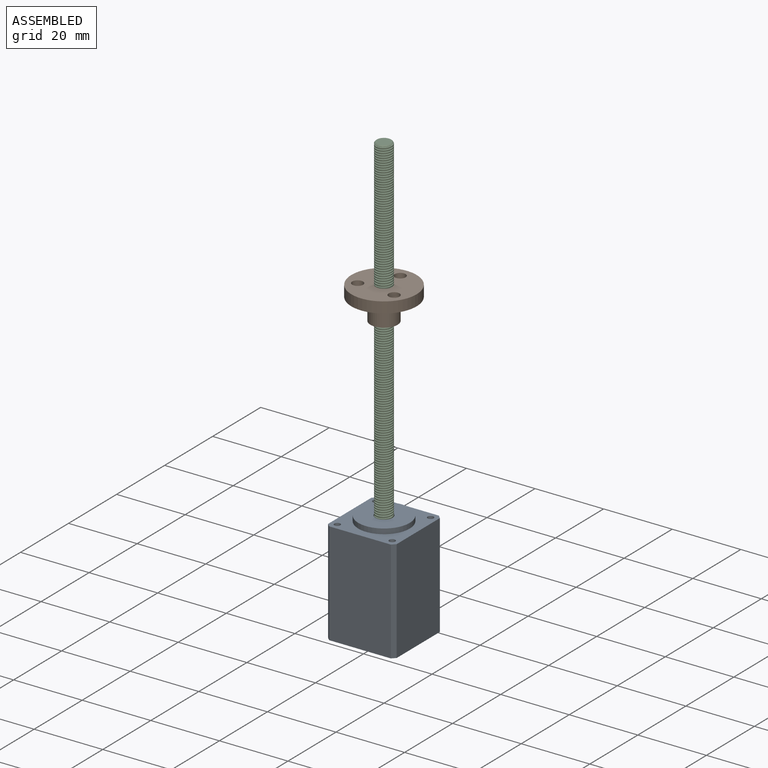
[diagram: assembled view]
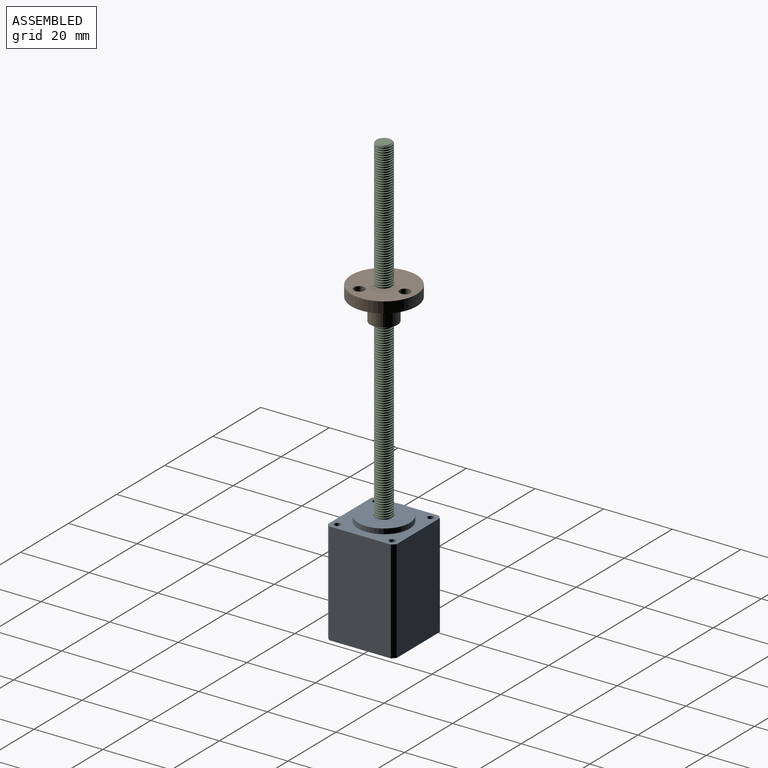
[diagram: assembled view, second angle]
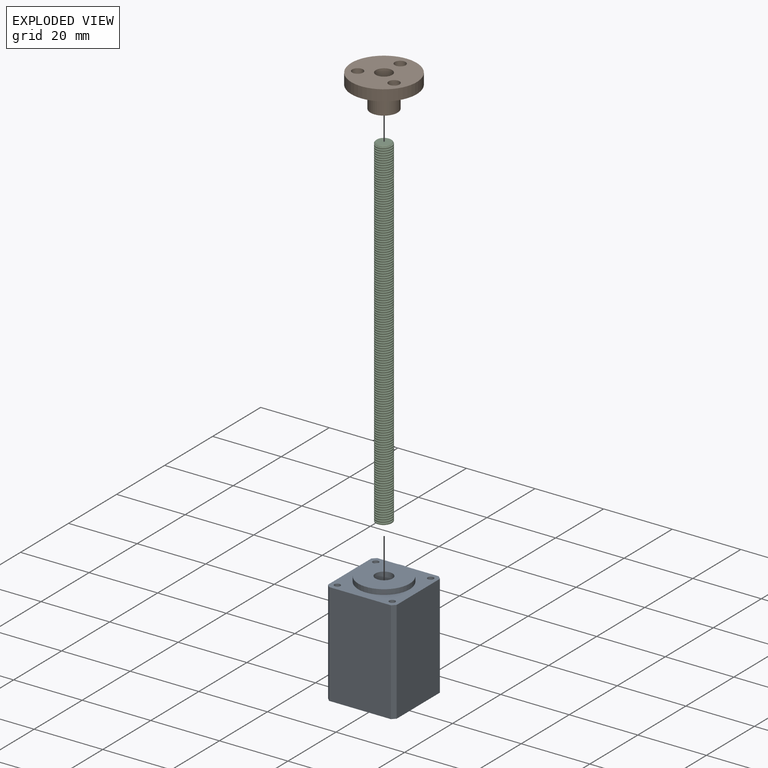
[diagram: exploded view]
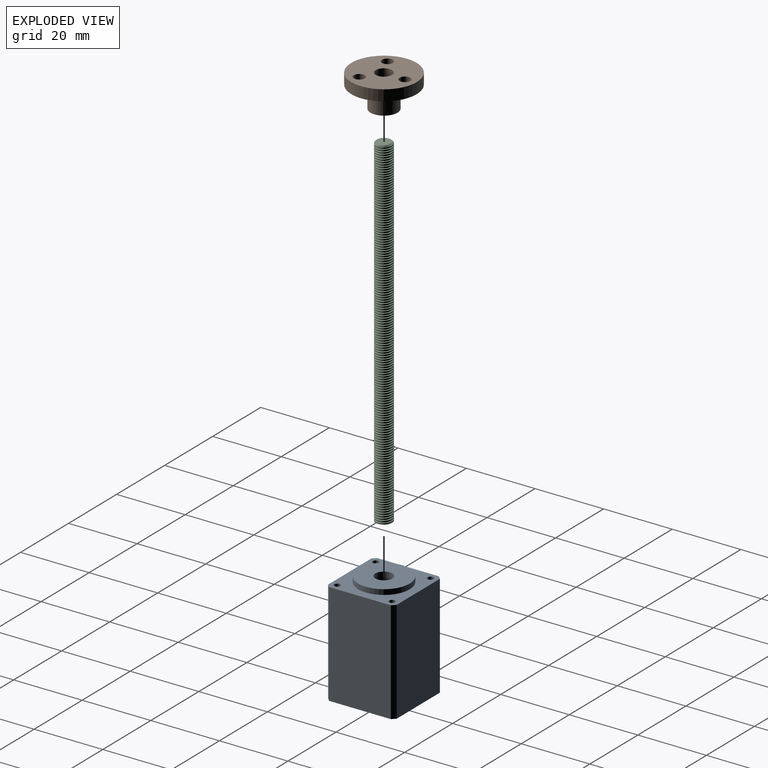
[diagram: exploded view, second angle]
ASSEMBLY  parts=3 mates=2
PART A: 21 faces, bbox 20x20x31.5 mm
  f0: plane 30x18mm, normal (0,1,0), area 540mm2, adj f5,f6,f17,f19
  f1: plane 30x18mm, normal (-1,0,0), area 540mm2, adj f5,f6,f17,f18
  f2: plane 30x18mm, normal (0,-1,0), area 540mm2, adj f5,f6,f18,f20
  f3: plane 30x18mm, normal (1,0,0), area 540mm2, adj f5,f6,f19,f20
  f4: cylinder r=2.5mm len=31.5mm, axis (0,0,1), area 494.8mm2, adj f5,f8
  f5: plane 20x20mm, normal (0,0,-1), area 378.4mm2, adj f0,f1,f2,f3,f4,f17,f18,f19
  f6: plane 20x20mm, normal (0,0,1), area 211.7mm2, adj f0,f1,f2,f3,f7,f10,f12,f14
  f7: cylinder r=7.5mm len=15mm, axis (0,0,-1), area 70.7mm2, adj f6,f8
  f8: plane 15x15mm, normal (0,0,1), area 157.1mm2, adj f4,f7
  f9: cone r=0mm half-angle=59deg, axis (0,0,1), area 2.8mm2, adj f10
  f10: cylinder r=0.88mm len=3.75mm, axis (0,0,1), area 20.6mm2, adj f6,f9
  f11: cone r=0mm half-angle=59deg, axis (0,0,1), area 2.8mm2, adj f12
  f12: cylinder r=0.88mm len=3.75mm, axis (0,0,1), area 20.6mm2, adj f6,f11
  f13: cone r=0mm half-angle=59deg, axis (0,0,1), area 2.8mm2, adj f14
  f14: cylinder r=0.88mm len=3.75mm, axis (0,0,1), area 20.6mm2, adj f6,f13
  f15: cone r=0mm half-angle=59deg, axis (0,0,1), area 2.8mm2, adj f16
  f16: cylinder r=0.88mm len=3.75mm, axis (0,0,1), area 20.6mm2, adj f6,f15
  f17: plane 30x1mm, normal (-0.71,0.71,0), area 42.4mm2, adj f0,f1,f5,f6
  f18: plane 30x1mm, normal (-0.71,-0.71,0), area 42.4mm2, adj f1,f2,f5,f6
  f19: plane 30x1mm, normal (0.71,0.71,0), area 42.4mm2, adj f0,f3,f5,f6
  f20: plane 30x1mm, normal (0.71,-0.71,0), area 42.4mm2, adj f2,f3,f5,f6
PART B: 9 faces, bbox 19.1x19.1x9.5 mm
  f0: cylinder r=9.53mm len=19.05mm, axis (0,0,1), area 190.3mm2, adj f5,f6
  f1: cylinder r=1.59mm len=3.18mm, axis (0,0,1), area 31.7mm2, adj f5,f6
  f2: cylinder r=1.59mm len=3.18mm, axis (0,0,1), area 31.7mm2, adj f5,f6
  f3: cylinder r=1.59mm len=3.18mm, axis (0,0,1), area 31.7mm2, adj f5,f6
  f4: cylinder r=2.38mm len=9.53mm, axis (0,0,1), area 142.5mm2, adj f5,f8
  f5: plane 19.05x19.05mm, normal (0,0,-1), area 243.5mm2, adj f0,f1,f2,f3,f4
  f6: plane 19.05x19.05mm, normal (0,0,1), area 211.8mm2, adj f0,f1,f2,f3,f7
  f7: cylinder r=3.97mm len=7.94mm, axis (0,0,-1), area 158.4mm2, adj f6,f8
  f8: plane 7.94x7.94mm, normal (0,0,1), area 31.7mm2, adj f4,f7
PART C: 7 faces, bbox 4.8x5.6x100.3 mm
  f0: cylinder r=2.38mm len=99.68mm, axis (0,0,-1), area 733mm2, adj f1,f3,f4,f5
  f1: plane 4.81x4.5mm, normal (0,0,-1), area 16.2mm2, adj f0,f4,f5,f6
  f2: plane 4.13x4.13mm, normal (0,0,1), area 13.4mm2, adj f3,f6
  f3: cone r=2.06mm half-angle=45deg, axis (0,0,-1), area 3.9mm2, adj f0,f2,f4,f5
  f4: bspline ~100.2x5.5mm, area 717.4mm2, adj f0,f1,f3,f6
  f5: bspline ~100.2x5.5mm, area 722.6mm2, adj f0,f1,f3,f6
  f6: cylinder r=2.06mm len=100mm, axis (0,0,1), area 3329.6mm2, adj f1,f2,f4,f5
PLACE A at identity fixed
PLACE B rot(axis=(0.88,0.48,0),180deg) t=(0,0,59.11)mm
PLACE C rot(axis=(0,0,1),116.8deg) t=(0,0,0)mm
MATE revolute A.f4 <-> C.f0  axis (0,0,1) through (0,0,1.5)mm
MATE cylindrical C.f0 <-> B.f4  axis (0,0,-1) through (0,0,0)mm
